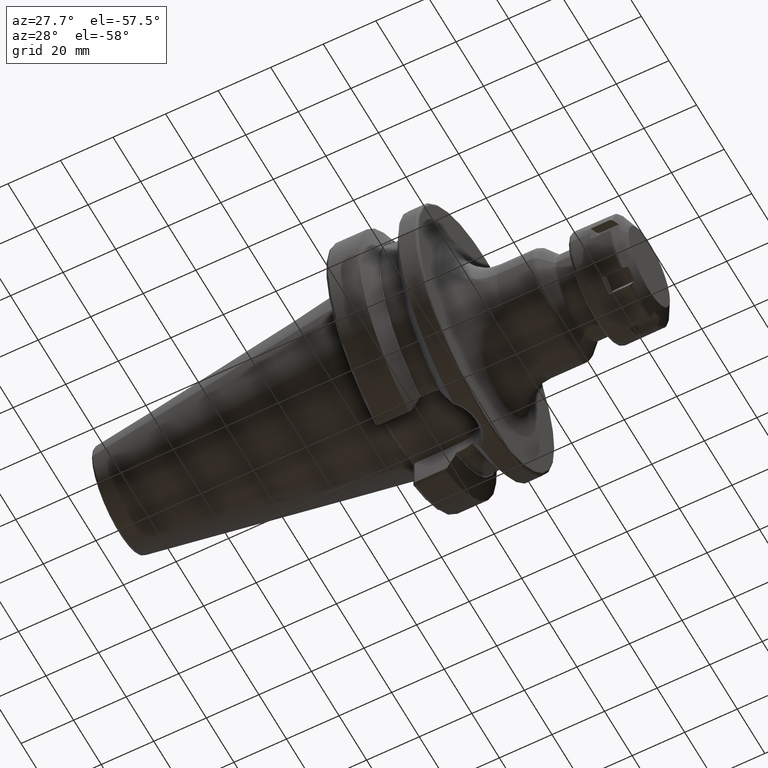
[diagram: clean part render]
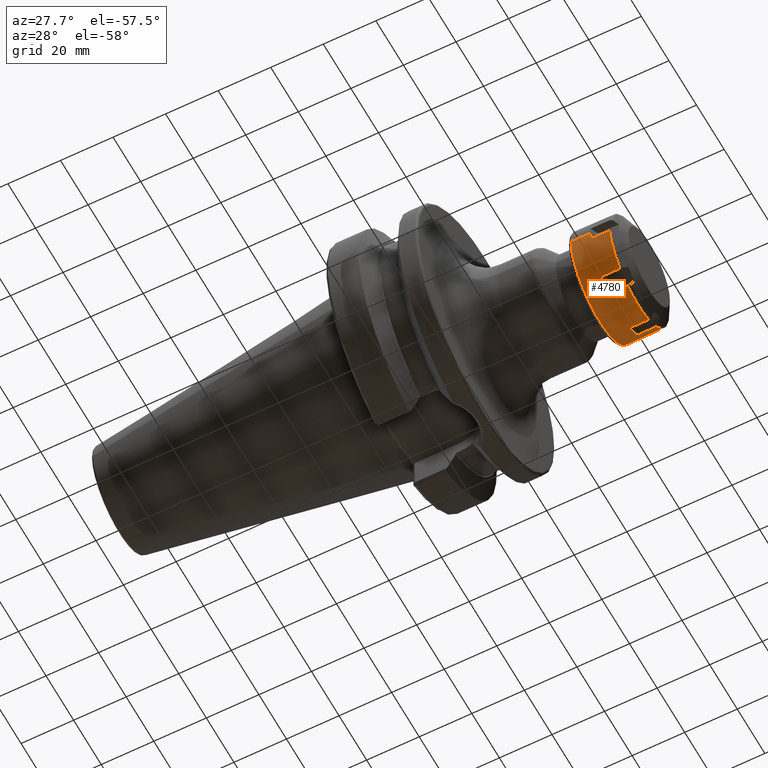
[diagram: same view with one face highlighted and labeled with its STEP entity id]
A machine part, auxiliary view. The second image highlights one B-rep face of the part: STEP entity #4780.
In plain terms, the highlighted cylindrical surface (partial cylindrical patch) has radius 21 mm, axis along (1, 0, 0).
Its self-contained STEP definition (entity closure, byte-faithful):
#3504=DIRECTION('',(9.999999999979E-1,1.452794262624E-6,-1.445246504649E-6));
#3505=VECTOR('',#3504,7.214202484702E0);
#3506=CARTESIAN_POINT('',(8.600008063689E0,7.578287451463E0,-1.958491746355E1));
#3507=LINE('',#3506,#3505);
#3520=DIRECTION('',(-1.E0,0.E0,0.E0));
#3521=VECTOR('',#3520,7.214210890546E0);
#3522=CARTESIAN_POINT('',(1.581421054838E1,1.317189611779E1,-1.635546247167E1));
#3523=LINE('',#3522,#3521);
#3602=CARTESIAN_POINT('',(1.581421054838E1,-1.317189611779E1,
-1.635546247167E1));
#3622=CARTESIAN_POINT('',(1.581421054838E1,-2.075019405E1,-3.229465418179E0));
#3624=CARTESIAN_POINT('',(1.581421054838E1,7.578297932215E0,-1.958492788985E1));
#3644=CARTESIAN_POINT('',(1.581421054838E1,-7.578297932215E0,
-1.958492788985E1));
#3652=CARTESIAN_POINT('',(1.581421054838E1,1.317189611779E1,-1.635546247167E1));
#3654=CARTESIAN_POINT('',(1.581421054838E1,2.075019405E1,-3.229465418179E0));
#3814=DIRECTION('',(-1.E0,3.594961594389E-14,0.E0));
#3815=VECTOR('',#3814,7.214210548375E0);
#3816=CARTESIAN_POINT('',(1.581421054838E1,-2.075019405E1,-3.229465418179E0));
#3817=LINE('',#3816,#3815);
#3829=CARTESIAN_POINT('',(1.581421054838E1,-1.792614389339E-14,0.E0));
#3830=DIRECTION('',(-1.E0,0.E0,0.E0));
#3831=DIRECTION('',(0.E0,9.881044785716E-1,-1.537840675323E-1));
#3832=AXIS2_PLACEMENT_3D('',#3829,#3830,#3831);
#3834=CARTESIAN_POINT('',(8.6E0,0.E0,0.E0));
#3835=DIRECTION('',(-1.E0,0.E0,0.E0));
#3836=DIRECTION('',(0.E0,1.E0,0.E0));
#3837=AXIS2_PLACEMENT_3D('',#3834,#3835,#3836);
#3839=DIRECTION('',(-1.E0,9.411549393136E-12,6.000804948597E-11));
#3840=VECTOR('',#3839,7.350000000040E0);
#3841=CARTESIAN_POINT('',(8.600000000040E0,2.099999999993E1,
-4.377820052165E-10));
#3842=LINE('',#3841,#3840);
#3843=CARTESIAN_POINT('',(1.25E0,0.E0,0.E0));
#3844=DIRECTION('',(-1.E0,0.E0,0.E0));
#3845=DIRECTION('',(0.E0,1.E0,0.E0));
#3846=AXIS2_PLACEMENT_3D('',#3843,#3844,#3845);
#3848=DIRECTION('',(-1.E0,-9.436200875805E-12,-6.000654573246E-11));
#3849=VECTOR('',#3848,7.350000000040E0);
#3850=CARTESIAN_POINT('',(8.600000000040E0,-2.099999999993E1,
4.377679851591E-10));
#3851=LINE('',#3850,#3849);
#3852=CARTESIAN_POINT('',(8.6E0,0.E0,0.E0));
#3853=DIRECTION('',(-1.E0,0.E0,0.E0));
#3854=DIRECTION('',(0.E0,-9.881044785716E-1,-1.537840675323E-1));
#3855=AXIS2_PLACEMENT_3D('',#3852,#3853,#3854);
#3857=CARTESIAN_POINT('',(1.581421054838E1,-1.792614389339E-14,0.E0));
#3858=DIRECTION('',(-1.E0,0.E0,0.E0));
#3859=DIRECTION('',(0.E0,-6.272331484661E-1,-7.788315462700E-1));
#3860=AXIS2_PLACEMENT_3D('',#3857,#3858,#3859);
#3862=CARTESIAN_POINT('',(1.581421054838E1,-1.792614389339E-14,0.E0));
#3863=DIRECTION('',(-1.E0,0.E0,0.E0));
#3864=DIRECTION('',(0.E0,3.608713301055E-1,-9.326156138023E-1));
#3865=AXIS2_PLACEMENT_3D('',#3862,#3863,#3864);
#3884=CARTESIAN_POINT('',(8.600000318507E0,-1.804967895792E-5,
1.352930437069E-5));
#3885=DIRECTION('',(-1.E0,0.E0,0.E0));
#3886=DIRECTION('',(0.E0,6.272333551021E-1,-7.788313798553E-1));
#3887=AXIS2_PLACEMENT_3D('',#3884,#3885,#3886);
#3903=DIRECTION('',(1.E0,0.E0,0.E0));
#3904=VECTOR('',#3903,7.214210548375E0);
#3905=CARTESIAN_POINT('',(8.6E0,2.075019405E1,-3.229465418179E0));
#3906=LINE('',#3905,#3904);
#4128=DIRECTION('',(9.999999999998E-1,6.709444709144E-7,9.098406604267E-8));
#4129=VECTOR('',#4128,7.214212575504E0);
#4130=CARTESIAN_POINT('',(8.599997972873E0,-1.317190095812E1,
-1.635546312805E1));
#4131=LINE('',#4130,#4129);
#4144=DIRECTION('',(-1.E0,0.E0,0.E0));
#4145=VECTOR('',#4144,7.214210815093E0);
#4146=CARTESIAN_POINT('',(1.581421054838E1,-7.578297932215E0,
-1.958492788985E1));
#4147=LINE('',#4146,#4145);
#4177=CARTESIAN_POINT('',(8.600000222181E0,-7.035000469932E-6,
-1.879731692430E-6));
#4178=DIRECTION('',(-1.E0,0.E0,0.E0));
#4179=DIRECTION('',(0.E0,-3.608710688571E-1,-9.326157148911E-1));
#4180=AXIS2_PLACEMENT_3D('',#4177,#4178,#4179);
#4196=CARTESIAN_POINT('',(1.25E0,2.1E1,0.E0));
#4197=CARTESIAN_POINT('',(1.25E0,-2.1E1,0.E0));
#4198=VERTEX_POINT('',#4196);
#4199=VERTEX_POINT('',#4197);
#4206=VERTEX_POINT('',#3654);
#4207=CARTESIAN_POINT('',(8.6E0,2.1E1,0.E0));
#4208=CARTESIAN_POINT('',(8.6E0,2.075019405E1,-3.229465418179E0));
#4209=VERTEX_POINT('',#4207);
#4210=VERTEX_POINT('',#4208);
#4251=VERTEX_POINT('',#3622);
#4252=CARTESIAN_POINT('',(8.6E0,-2.1E1,0.E0));
#4254=VERTEX_POINT('',#4252);
#4256=CARTESIAN_POINT('',(8.6E0,-2.075019405E1,-3.229465418179E0));
#4257=VERTEX_POINT('',#4256);
#4266=VERTEX_POINT('',#3602);
#4267=VERTEX_POINT('',#3644);
#4268=CARTESIAN_POINT('',(8.600000222181E0,-7.578297626635E0,
-1.958492710012E1));
#4269=CARTESIAN_POINT('',(8.600000222181E0,-1.317189658068E1,
-1.635546304645E1));
#4270=VERTEX_POINT('',#4268);
#4271=VERTEX_POINT('',#4269);
#4280=VERTEX_POINT('',#3624);
#4281=VERTEX_POINT('',#3652);
#4282=CARTESIAN_POINT('',(8.600000318507E0,1.317189540004E1,-1.635546158045E1));
#4283=CARTESIAN_POINT('',(8.600000318507E0,7.578298503418E0,-1.958492936603E1));
#4284=VERTEX_POINT('',#4282);
#4285=VERTEX_POINT('',#4283);
#4747=CARTESIAN_POINT('',(-1.E0,0.E0,0.E0));
#4748=DIRECTION('',(1.E0,0.E0,0.E0));
#4749=DIRECTION('',(0.E0,-1.E0,0.E0));
#4750=AXIS2_PLACEMENT_3D('',#4747,#4748,#4749);
#4751=CYLINDRICAL_SURFACE('',#4750,2.1E1);
#4753=ORIENTED_EDGE('',*,*,#4752,.F.);
#4754=ORIENTED_EDGE('',*,*,#4426,.F.);
#4755=ORIENTED_EDGE('',*,*,#4531,.F.);
#4757=ORIENTED_EDGE('',*,*,#4756,.F.);
#4759=ORIENTED_EDGE('',*,*,#4758,.F.);
#4761=ORIENTED_EDGE('',*,*,#4760,.T.);
#4763=ORIENTED_EDGE('',*,*,#4762,.T.);
#4765=ORIENTED_EDGE('',*,*,#4764,.F.);
#4767=ORIENTED_EDGE('',*,*,#4766,.F.);
#4768=ORIENTED_EDGE('',*,*,#4727,.F.);
#4769=ORIENTED_EDGE('',*,*,#4500,.F.);
#4771=ORIENTED_EDGE('',*,*,#4770,.F.);
#4773=ORIENTED_EDGE('',*,*,#4772,.F.);
#4775=ORIENTED_EDGE('',*,*,#4774,.F.);
#4776=ORIENTED_EDGE('',*,*,#4514,.F.);
#4777=ORIENTED_EDGE('',*,*,#4350,.F.);
#4778=EDGE_LOOP('',(#4753,#4754,#4755,#4757,#4759,#4761,#4763,#4765,#4767,#4768,
#4769,#4771,#4773,#4775,#4776,#4777));
#4779=FACE_OUTER_BOUND('',#4778,.F.);
#4780=ADVANCED_FACE('',(#4779),#4751,.T.);
#3833=CIRCLE('',#3832,2.1E1);
#3838=CIRCLE('',#3837,2.1E1);
#3847=CIRCLE('',#3846,2.1E1);
#3856=CIRCLE('',#3855,2.1E1);
#3861=CIRCLE('',#3860,2.1E1);
#3866=CIRCLE('',#3865,2.1E1);
#3888=CIRCLE('',#3887,2.100002071410E1);
#4181=CIRCLE('',#4180,2.099999486142E1);
#4350=EDGE_CURVE('',#4285,#4280,#3507,.T.);
#4426=EDGE_CURVE('',#4281,#4284,#3523,.T.);
#4500=EDGE_CURVE('',#4266,#4251,#3861,.T.);
#4514=EDGE_CURVE('',#4280,#4267,#3866,.T.);
#4531=EDGE_CURVE('',#4206,#4281,#3833,.T.);
#4727=EDGE_CURVE('',#4251,#4257,#3817,.T.);
#4752=EDGE_CURVE('',#4284,#4285,#3888,.T.);
#4756=EDGE_CURVE('',#4210,#4206,#3906,.T.);
#4758=EDGE_CURVE('',#4209,#4210,#3838,.T.);
#4760=EDGE_CURVE('',#4209,#4198,#3842,.T.);
#4762=EDGE_CURVE('',#4198,#4199,#3847,.T.);
#4764=EDGE_CURVE('',#4254,#4199,#3851,.T.);
#4766=EDGE_CURVE('',#4257,#4254,#3856,.T.);
#4770=EDGE_CURVE('',#4271,#4266,#4131,.T.);
#4772=EDGE_CURVE('',#4270,#4271,#4181,.T.);
#4774=EDGE_CURVE('',#4267,#4270,#4147,.T.);